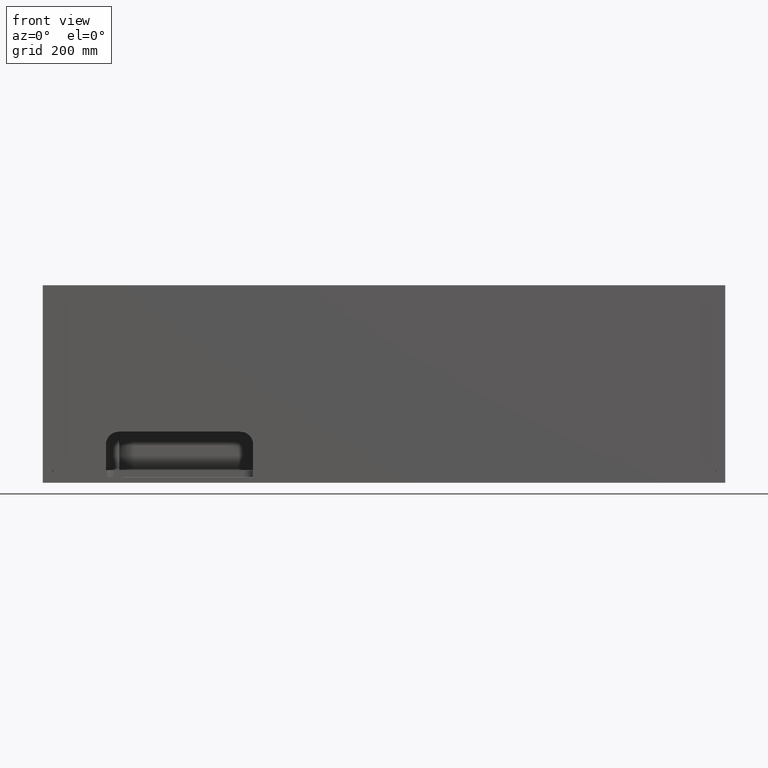
[diagram: clean part render]
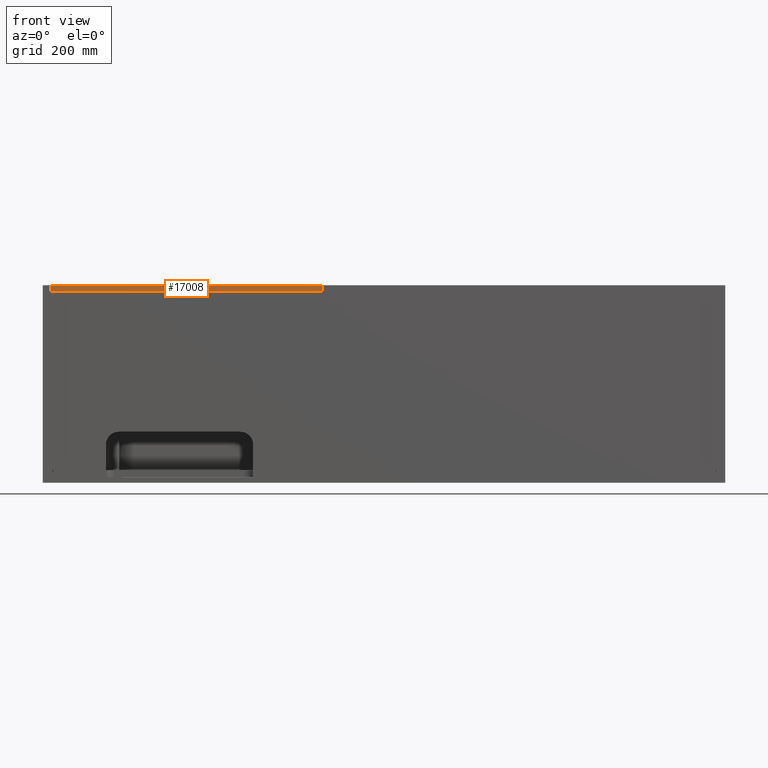
[diagram: same view with one face highlighted and labeled with its STEP entity id]
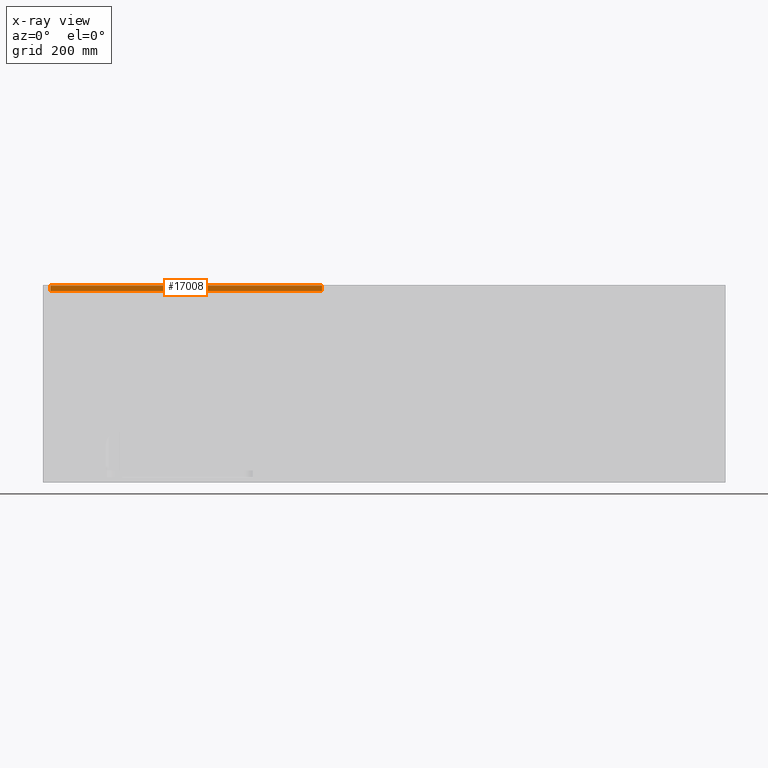
[diagram: x-ray of the same camera — body ghosted, the highlighted face saturated]
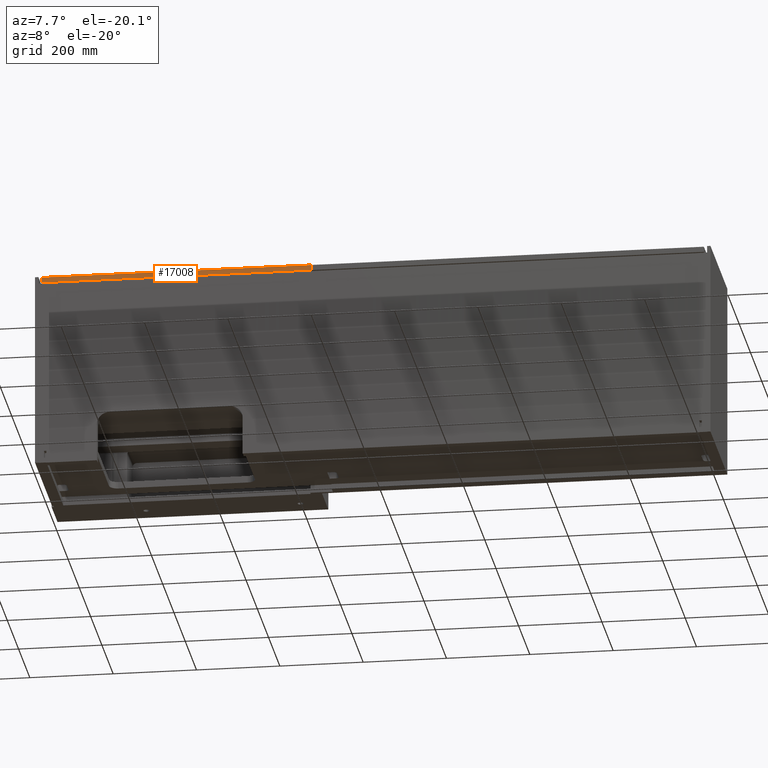
[diagram: same view with one face highlighted and labeled with its STEP entity id]
A machine part, front view. The second image highlights one B-rep face of the part: STEP entity #17008.
The next image is the same camera in x-ray: the body ghosted, the highlighted face saturated — about 0% of this face is hidden behind the body in this view.
A second angle (auxiliary view) of the same face is appended — the face is thin or edge-on in the first view.
In plain terms, the highlighted planar face has unit normal (0, 1, -0).
Its self-contained STEP definition (entity closure, byte-faithful):
#1146 = ORIENTED_EDGE ( 'NONE', *, *, #15017, .F. ) ;
#2373 = DIRECTION ( 'NONE',  ( -1.000000000000000000, -0.0000000000000000000, -0.0000000000000000000 ) ) ;
#2380 = CARTESIAN_POINT ( 'NONE',  ( 18.00000000000001421, 0.0000000000000000000, -14.00000000000001243 ) ) ;
#2394 = LINE ( 'NONE', #2380, #13961 ) ;
#2503 = EDGE_CURVE ( 'NONE', #7793, #7019, #2394, .T. ) ;
#2555 = LINE ( 'NONE', #8423, #9805 ) ;
#3865 = CARTESIAN_POINT ( 'NONE',  ( 0.0000000000000000000, 0.0000000000000000000, 0.0000000000000000000 ) ) ;
#5248 = VERTEX_POINT ( 'NONE', #16665 ) ;
#5366 = ORIENTED_EDGE ( 'NONE', *, *, #19086, .F. ) ;
#5394 = LINE ( 'NONE', #11290, #8317 ) ;
#5519 = AXIS2_PLACEMENT_3D ( 'NONE', #3865, #9754, #15684 ) ;
#6849 = LINE ( 'NONE', #9945, #7969 ) ;
#7019 = VERTEX_POINT ( 'NONE', #16330 ) ;
#7793 = VERTEX_POINT ( 'NONE', #11332 ) ;
#7969 = VECTOR ( 'NONE', #15881, 1000.000000000000000 ) ;
#8317 = VECTOR ( 'NONE', #17213, 1000.000000000000000 ) ;
#8423 = CARTESIAN_POINT ( 'NONE',  ( 18.00000000000001421, 0.0000000000000000000, -14.00000000000001243 ) ) ;
#9754 = DIRECTION ( 'NONE',  ( 0.0000000000000000000, 1.000000000000000000, -0.0000000000000000000 ) ) ;
#9805 = VECTOR ( 'NONE', #14348, 1000.000000000000000 ) ;
#9945 = CARTESIAN_POINT ( 'NONE',  ( 663.9999999999998863, 0.0000000000000000000, -14.00000000000001243 ) ) ;
#10345 = ORIENTED_EDGE ( 'NONE', *, *, #15315, .F. ) ;
#10762 = ORIENTED_EDGE ( 'NONE', *, *, #2503, .F. ) ;
#11200 = FACE_OUTER_BOUND ( 'NONE', #12527, .T. ) ;
#11290 = CARTESIAN_POINT ( 'NONE',  ( 18.00000000000001421, 0.0000000000000000000, -1.000000000000000888 ) ) ;
#11332 = CARTESIAN_POINT ( 'NONE',  ( 663.9999999999998863, 0.0000000000000000000, -14.00000000000001243 ) ) ;
#12527 = EDGE_LOOP ( 'NONE', ( #10345, #10762, #1146, #5366 ) ) ;
#13961 = VECTOR ( 'NONE', #2373, 1000.000000000000000 ) ;
#14348 = DIRECTION ( 'NONE',  ( -2.668805347656626678E-16, 0.0000000000000000000, 1.000000000000000000 ) ) ;
#15017 = EDGE_CURVE ( 'NONE', #5248, #7793, #6849, .T. ) ;
#15315 = EDGE_CURVE ( 'NONE', #7019, #17594, #2555, .T. ) ;
#15684 = DIRECTION ( 'NONE',  ( 0.0000000000000000000, 0.0000000000000000000, 1.000000000000000000 ) ) ;
#15881 = DIRECTION ( 'NONE',  ( -0.0000000000000000000, -0.0000000000000000000, -1.000000000000000000 ) ) ;
#16330 = CARTESIAN_POINT ( 'NONE',  ( 18.00000000000001421, 0.0000000000000000000, -14.00000000000001243 ) ) ;
#16665 = CARTESIAN_POINT ( 'NONE',  ( 663.9999999999998863, 0.0000000000000000000, -1.000000000000000888 ) ) ;
#17008 = ADVANCED_FACE ( 'NONE', ( #11200 ), #17124, .F. ) ;
#17124 = PLANE ( 'NONE',  #5519 ) ;
#17213 = DIRECTION ( 'NONE',  ( 1.000000000000000000, 0.0000000000000000000, 0.0000000000000000000 ) ) ;
#17594 = VERTEX_POINT ( 'NONE', #18208 ) ;
#18208 = CARTESIAN_POINT ( 'NONE',  ( 18.00000000000001421, 0.0000000000000000000, -1.000000000000000888 ) ) ;
#19086 = EDGE_CURVE ( 'NONE', #17594, #5248, #5394, .T. ) ;